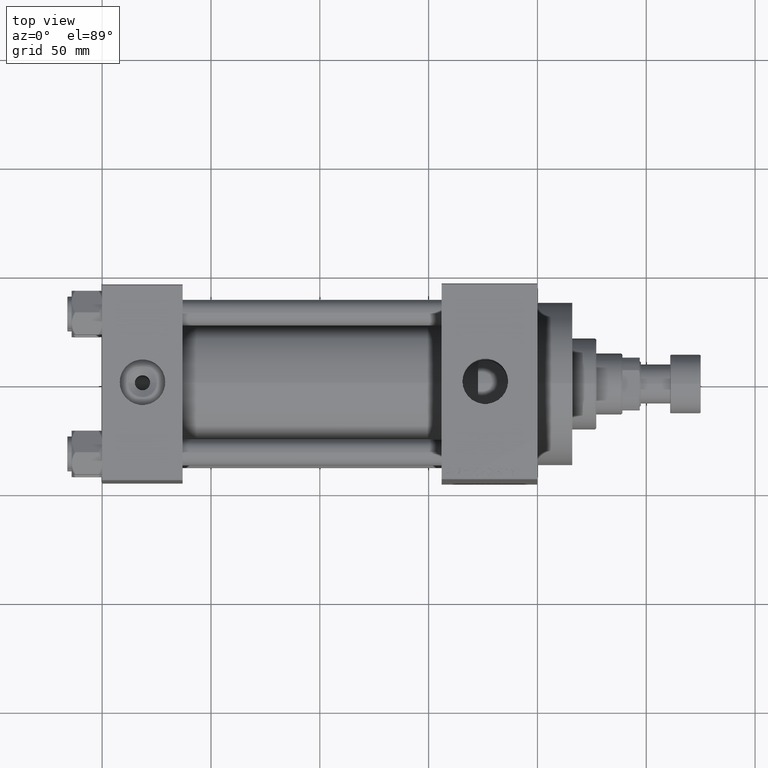
[diagram: clean part render]
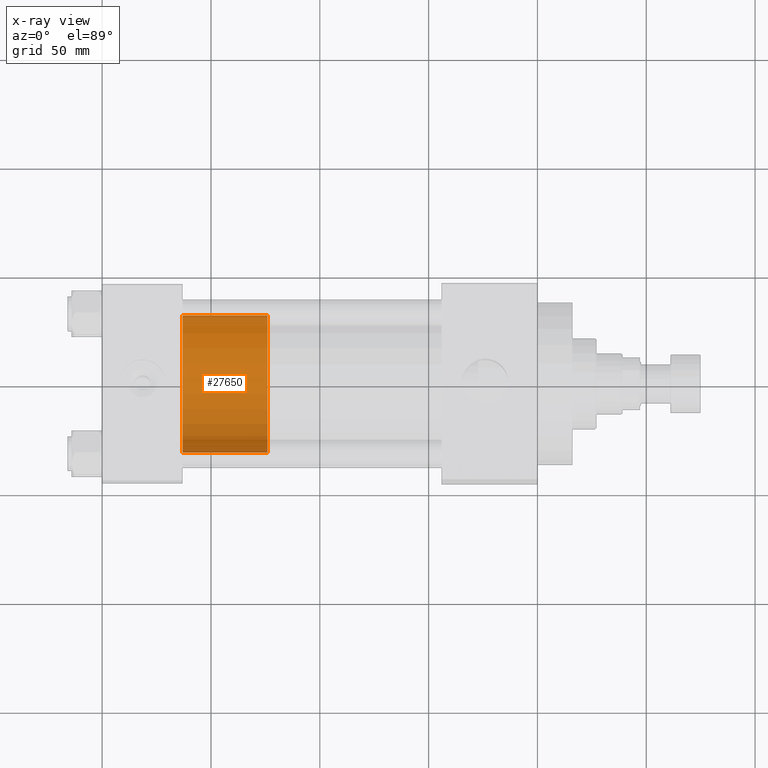
[diagram: x-ray — body ghosted, one internal face saturated and labeled with its STEP entity id]
A machine part, top view, then the same camera in x-ray: the body is ghosted and one INTERNAL B-rep face — a face not visible from any outside direction — is saturated and labeled: STEP entity #27650.
In plain terms, the highlighted cylindrical surface (partial cylindrical patch) has radius 31.5 mm, axis along (-1, 0, 0).
Its self-contained STEP definition (entity closure, byte-faithful):
#1593 = LINE ( 'NONE', #45237, #27632 ) ;
#2577 = ORIENTED_EDGE ( 'NONE', *, *, #34248, .F. ) ;
#4078 = EDGE_CURVE ( 'NONE', #40858, #22692, #43305, .T. ) ;
#5551 = VERTEX_POINT ( 'NONE', #41048 ) ;
#6630 = EDGE_CURVE ( 'NONE', #5551, #40858, #42292, .T. ) ;
#7313 = ORIENTED_EDGE ( 'NONE', *, *, #4078, .T. ) ;
#7684 = DIRECTION ( 'NONE',  ( 0.000000000000000000, 0.000000000000000000, 1.000000000000000000 ) ) ;
#8819 = DIRECTION ( 'NONE',  ( -0.000000000000000000, -0.000000000000000000, -1.000000000000000000 ) ) ;
#9440 = FACE_OUTER_BOUND ( 'NONE', #47147, .T. ) ;
#9807 = CARTESIAN_POINT ( 'NONE',  ( -31.50000000000000000, 0.000000000000000000, 39.00000000000000000 ) ) ;
#10155 = DIRECTION ( 'NONE',  ( -1.000000000000000000, 0.000000000000000000, 0.000000000000000000 ) ) ;
#10636 = CIRCLE ( 'NONE', #16069, 31.50000000000000000 ) ;
#13592 = CARTESIAN_POINT ( 'NONE',  ( 31.50000000000000000, 3.857637417314162689E-15, 0.000000000000000000 ) ) ;
#14592 = DIRECTION ( 'NONE',  ( 1.000000000000000000, 0.000000000000000000, 0.000000000000000000 ) ) ;
#15839 = VERTEX_POINT ( 'NONE', #9807 ) ;
#16069 = AXIS2_PLACEMENT_3D ( 'NONE', #37550, #7684, #26487 ) ;
#16783 = CARTESIAN_POINT ( 'NONE',  ( 31.50000000000000000, 3.857637417314162689E-15, 39.00000000000000000 ) ) ;
#16867 = CARTESIAN_POINT ( 'NONE',  ( -31.50000000000000000, 0.000000000000000000, 0.000000000000000000 ) ) ;
#20532 = DIRECTION ( 'NONE',  ( -0.000000000000000000, -0.000000000000000000, -1.000000000000000000 ) ) ;
#22692 = VERTEX_POINT ( 'NONE', #16867 ) ;
#24096 = AXIS2_PLACEMENT_3D ( 'NONE', #29268, #43259, #14592 ) ;
#24393 = CYLINDRICAL_SURFACE ( 'NONE', #33760, 31.50000000000000000 ) ;
#26487 = DIRECTION ( 'NONE',  ( 1.000000000000000000, 0.000000000000000000, 0.000000000000000000 ) ) ;
#27632 = VECTOR ( 'NONE', #38002, 1000.000000000000000 ) ;
#27650 = ADVANCED_FACE ( 'NONE', ( #9440 ), #24393, .T. ) ;
#27980 = EDGE_CURVE ( 'NONE', #15839, #22692, #1593, .T. ) ;
#29268 = CARTESIAN_POINT ( 'NONE',  ( 0.000000000000000000, 0.000000000000000000, 0.000000000000000000 ) ) ;
#30187 = ORIENTED_EDGE ( 'NONE', *, *, #6630, .T. ) ;
#33760 = AXIS2_PLACEMENT_3D ( 'NONE', #39310, #20532, #10155 ) ;
#34248 = EDGE_CURVE ( 'NONE', #5551, #15839, #10636, .T. ) ;
#37550 = CARTESIAN_POINT ( 'NONE',  ( 0.000000000000000000, 0.000000000000000000, 39.00000000000000000 ) ) ;
#38002 = DIRECTION ( 'NONE',  ( -0.000000000000000000, -0.000000000000000000, -1.000000000000000000 ) ) ;
#39310 = CARTESIAN_POINT ( 'NONE',  ( 0.000000000000000000, 0.000000000000000000, 39.00000000000000000 ) ) ;
#40134 = VECTOR ( 'NONE', #8819, 1000.000000000000000 ) ;
#40731 = ORIENTED_EDGE ( 'NONE', *, *, #27980, .F. ) ;
#40858 = VERTEX_POINT ( 'NONE', #13592 ) ;
#41048 = CARTESIAN_POINT ( 'NONE',  ( 31.50000000000000000, 3.857637417314162689E-15, 39.00000000000000000 ) ) ;
#42292 = LINE ( 'NONE', #16783, #40134 ) ;
#43259 = DIRECTION ( 'NONE',  ( 0.000000000000000000, 0.000000000000000000, 1.000000000000000000 ) ) ;
#43305 = CIRCLE ( 'NONE', #24096, 31.50000000000000000 ) ;
#45237 = CARTESIAN_POINT ( 'NONE',  ( -31.50000000000000000, 0.000000000000000000, 39.00000000000000000 ) ) ;
#47147 = EDGE_LOOP ( 'NONE', ( #2577, #30187, #7313, #40731 ) ) ;